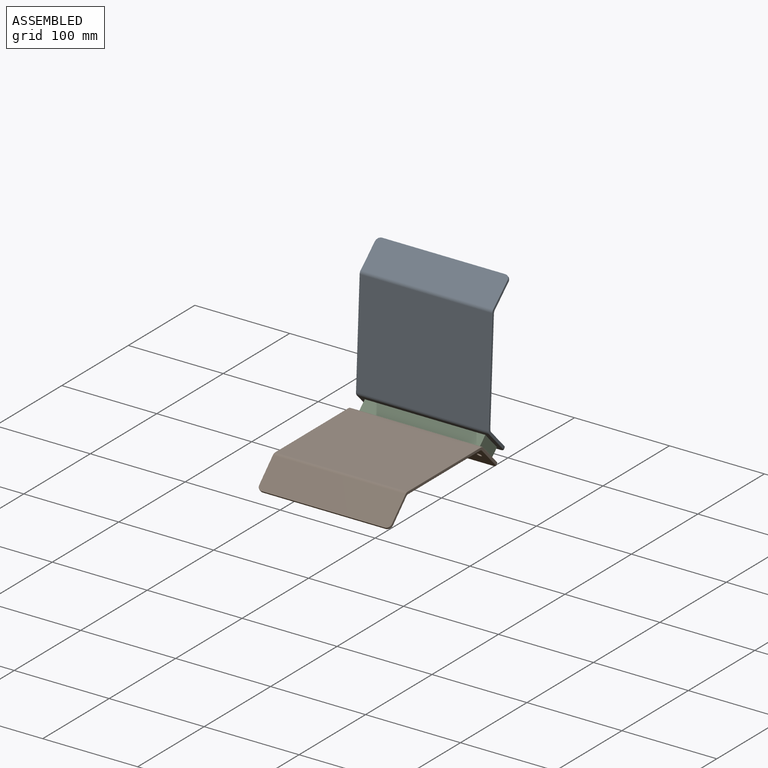
[diagram: assembled view]
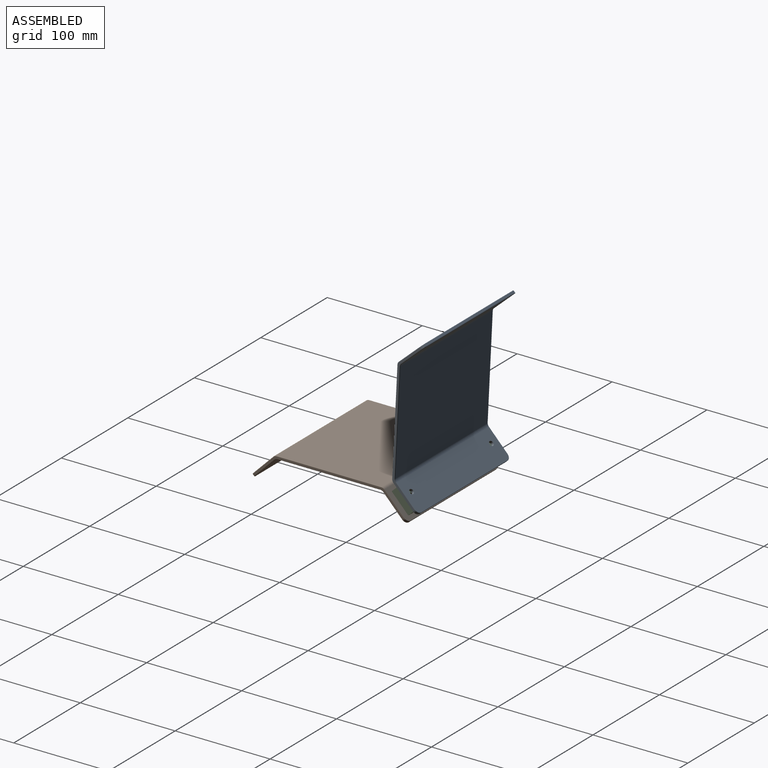
[diagram: assembled view, second angle]
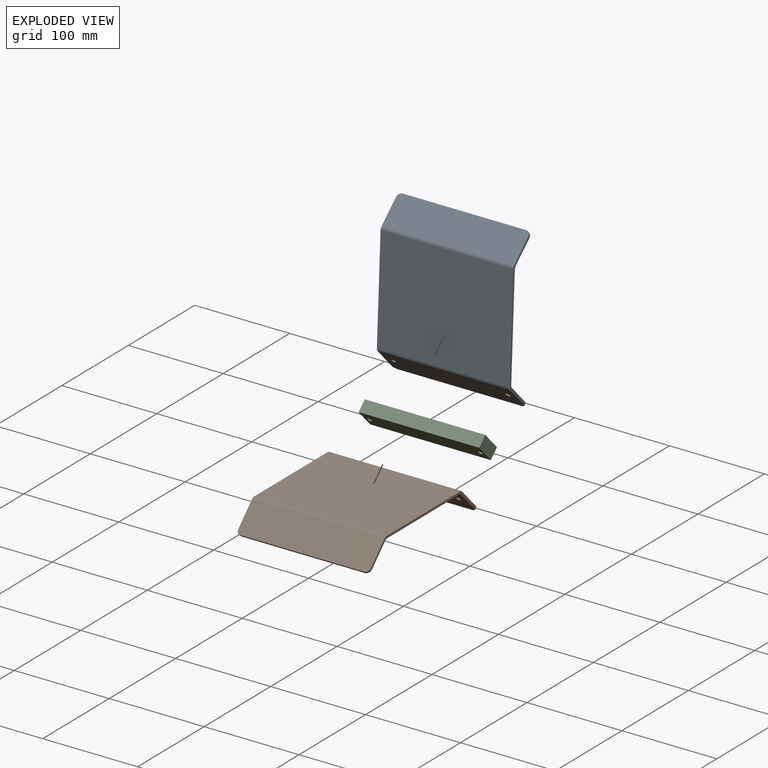
[diagram: exploded view]
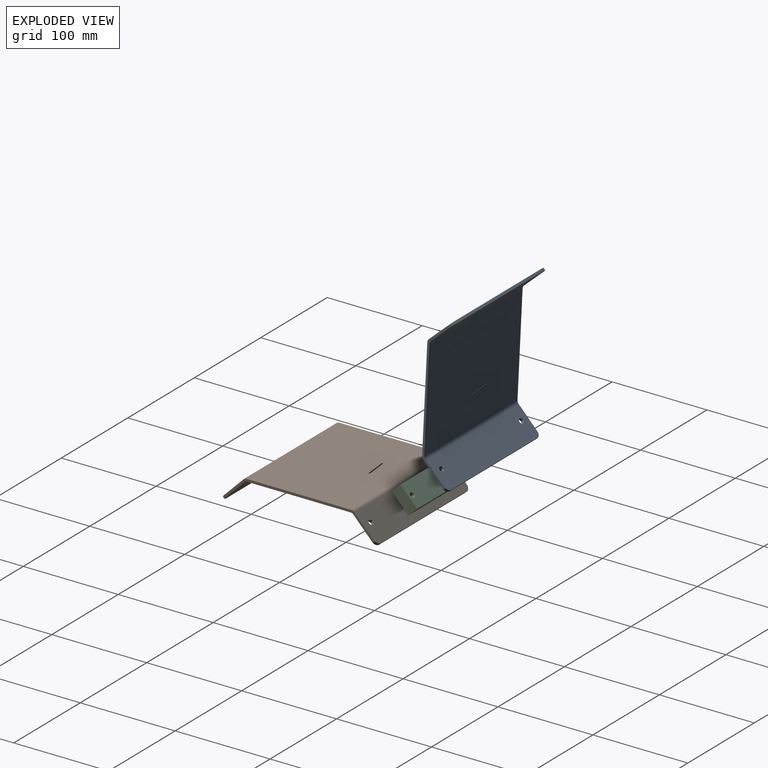
[diagram: exploded view, second angle]
ASSEMBLY  parts=3 mates=2
PART A: 52 faces, bbox 140.5x165.4x29.3 mm
  f0: plane 138.94x24.07mm, normal (0,-0.72,-0.69), area 4566.1mm2, adj f4,f45,f46,f47,f48,f49,f50,f51
  f1: plane 138.94x25mm, normal (0,0.72,0.69), area 4744.7mm2, adj f6,f29,f30,f31,f32,f33,f50,f51
  f2: cylinder r=4.57mm len=138.94mm, axis (-1,0,0), area 498.9mm2, adj f3,f11,f39,f40
  f3: plane 138.94x107.92mm, normal (0,0,-1), area 14994mm2, adj f2,f4,f41,f42
  f4: cylinder r=4.57mm len=138.94mm, axis (-1,0,0), area 514.7mm2, adj f0,f3,f43,f44
  f5: plane 129.54x1.62mm, normal (0,0.69,-0.72), area 289.5mm2, adj f15,f17,f33,f49
  f6: cylinder r=4.57mm len=138.94mm, axis (-1,0,0), area 514.7mm2, adj f1,f7,f27,f28
  f7: plane 138.94x110.45mm, normal (0,0,1), area 15345mm2, adj f6,f8,f25,f26
  f8: cylinder r=4.57mm len=138.94mm, axis (-1,0,0), area 498.9mm2, adj f7,f9,f23,f24
  f9: plane 138.94x23.79mm, normal (0,-0.71,0.71), area 4665.3mm2, adj f8,f18,f19,f20,f21,f22
  f10: plane 129.54x1.58mm, normal (0,-0.71,-0.71), area 289.5mm2, adj f14,f16,f18,f34
  f11: plane 138.94x22.91mm, normal (0,0.71,-0.71), area 4492.8mm2, adj f2,f34,f35,f36,f37,f38
  f12: plane 157.46x24.44mm, normal (1,0,0), area 390.1mm2, adj f16,f17,f21,f23,f25,f27,f29,f37
  f13: plane 157.46x24.44mm, normal (-1,0,0), area 390.1mm2, adj f14,f15,f22,f24,f26,f28,f30,f38
  f14: cylinder r=5.08mm len=5.17mm, axis (0,0.71,-0.71), area 17.8mm2, adj f10,f13,f20,f36
  f15: cylinder r=5.08mm len=5.22mm, axis (0,0.72,0.69), area 17.8mm2, adj f5,f13,f32,f48
  f16: cylinder r=5.08mm len=5.17mm, axis (0,-0.71,0.71), area 17.8mm2, adj f10,f12,f19,f35
  f17: cylinder r=5.08mm len=5.22mm, axis (0,-0.72,-0.69), area 17.8mm2, adj f5,f12,f31,f47
  f18: cylinder r=0.38mm len=129.54mm, axis (1,0,0), area 77.5mm2, adj f9,f10,f19,f20
  f19: torus R=4.7mm, axis (0,-0.71,0.71), area 4.6mm2, adj f9,f16,f18,f21
  f20: torus R=4.7mm, axis (0,-0.71,0.71), area 4.6mm2, adj f9,f14,f18,f22
  f21: cylinder r=0.38mm len=20.74mm, axis (0,0.71,0.71), area 17.3mm2, adj f9,f12,f19,f23
  f22: cylinder r=0.38mm len=20.74mm, axis (0,-0.71,-0.71), area 17.3mm2, adj f9,f13,f20,f24
  f23: torus R=4.19mm, axis (1,0,0), area 2.1mm2, adj f8,f12,f21,f25
  f24: torus R=4.19mm, axis (1,0,0), area 2.1mm2, adj f8,f13,f22,f26
  f25: cylinder r=0.38mm len=110.45mm, axis (0,1,0), area 66.1mm2, adj f7,f12,f23,f27
  f26: cylinder r=0.38mm len=110.45mm, axis (0,-1,0), area 66.1mm2, adj f7,f13,f24,f28
  f27: torus R=4.19mm, axis (1,0,0), area 2.2mm2, adj f6,f12,f25,f29
  f28: torus R=4.19mm, axis (1,0,0), area 2.2mm2, adj f6,f13,f26,f30
  f29: cylinder r=0.38mm len=21.86mm, axis (0,0.69,-0.72), area 17.8mm2, adj f1,f12,f27,f31
  f30: cylinder r=0.38mm len=21.86mm, axis (0,-0.69,0.72), area 17.8mm2, adj f1,f13,f28,f32
  f31: torus R=4.7mm, axis (0,0.72,0.69), area 4.6mm2, adj f1,f17,f29,f33
  f32: torus R=4.7mm, axis (0,0.72,0.69), area 4.6mm2, adj f1,f15,f30,f33
  f33: cylinder r=0.38mm len=129.54mm, axis (-1,0,0), area 77.5mm2, adj f1,f5,f31,f32
  f34: cylinder r=0.38mm len=129.54mm, axis (-1,0,0), area 77.5mm2, adj f10,f11,f35,f36
  f35: torus R=4.7mm, axis (0,-0.71,0.71), area 4.6mm2, adj f11,f16,f34,f37
  f36: torus R=4.7mm, axis (0,-0.71,0.71), area 4.6mm2, adj f11,f14,f34,f38
  f37: cylinder r=0.38mm len=19.86mm, axis (0,-0.71,-0.71), area 16.6mm2, adj f11,f12,f35,f39
  f38: cylinder r=0.38mm len=19.86mm, axis (0,0.71,0.71), area 16.6mm2, adj f11,f13,f36,f40
  f39: torus R=4.95mm, axis (1,0,0), area 2.2mm2, adj f2,f12,f37,f41
  f40: torus R=4.95mm, axis (1,0,0), area 2.2mm2, adj f2,f13,f38,f42
  f41: cylinder r=0.38mm len=107.92mm, axis (0,-1,0), area 64.6mm2, adj f3,f12,f39,f43
  f42: cylinder r=0.38mm len=107.92mm, axis (0,1,0), area 64.6mm2, adj f3,f13,f40,f44
  f43: torus R=4.95mm, axis (1,0,0), area 2.3mm2, adj f4,f12,f41,f45
  f44: torus R=4.95mm, axis (1,0,0), area 2.3mm2, adj f4,f13,f42,f46
  f45: cylinder r=0.38mm len=20.93mm, axis (0,-0.69,0.72), area 17.1mm2, adj f0,f12,f43,f47
  f46: cylinder r=0.38mm len=20.93mm, axis (0,0.69,-0.72), area 17.1mm2, adj f0,f13,f44,f48
  f47: torus R=4.7mm, axis (0,0.72,0.69), area 4.6mm2, adj f0,f17,f45,f49
  f48: torus R=4.7mm, axis (0,0.72,0.69), area 4.6mm2, adj f0,f15,f46,f49
  f49: cylinder r=0.38mm len=129.54mm, axis (1,0,0), area 77.5mm2, adj f0,f5,f47,f48
  f50: cylinder r=2.54mm len=5.75mm, axis (0,0.72,0.69), area 47.8mm2, adj f0,f1
  f51: cylinder r=2.54mm len=5.75mm, axis (0,0.72,0.69), area 47.8mm2, adj f0,f1
PART B: same geometry as A
PART C: 8 faces, bbox 127x25.4x12.7 mm
  f0: plane 127x25.4mm, normal (0,0,-1), area 3185.3mm2, adj f1,f3,f4,f5,f6,f7
  f1: plane 127x12.7mm, normal (0,1,0), area 1612.9mm2, adj f0,f2,f4,f5
  f2: plane 127x25.4mm, normal (0,0,1), area 3185.3mm2, adj f1,f3,f4,f5,f6,f7
  f3: plane 127x12.7mm, normal (0,-1,0), area 1612.9mm2, adj f0,f2,f4,f5
  f4: plane 25.4x12.7mm, normal (1,0,0), area 322.6mm2, adj f0,f1,f2,f3
  f5: plane 25.4x12.7mm, normal (-1,0,0), area 322.6mm2, adj f0,f1,f2,f3
  f6: cylinder r=2.54mm len=12.7mm, axis (0,0,1), area 202.7mm2, adj f0,f2
  f7: cylinder r=2.54mm len=12.7mm, axis (0,0,1), area 202.7mm2, adj f0,f2
PLACE A rot(axis=(0,0.69,-0.72),180deg) t=(-18.48,69.85,77.54)mm
PLACE B t=(-18.48,-12.04,-0.36)mm
PLACE C rot(axis=(-1,0,0),46.4deg) t=(-18.48,62.93,2.82)mm
MATE planar A.f1 <-> C.f2  axis (0,-0.72,-0.69) through (-18.48,67.55,7.18)mm
MATE planar C.f0 <-> B.f1  axis (0,-0.72,-0.69) through (-18.49,58.33,-1.56)mm
